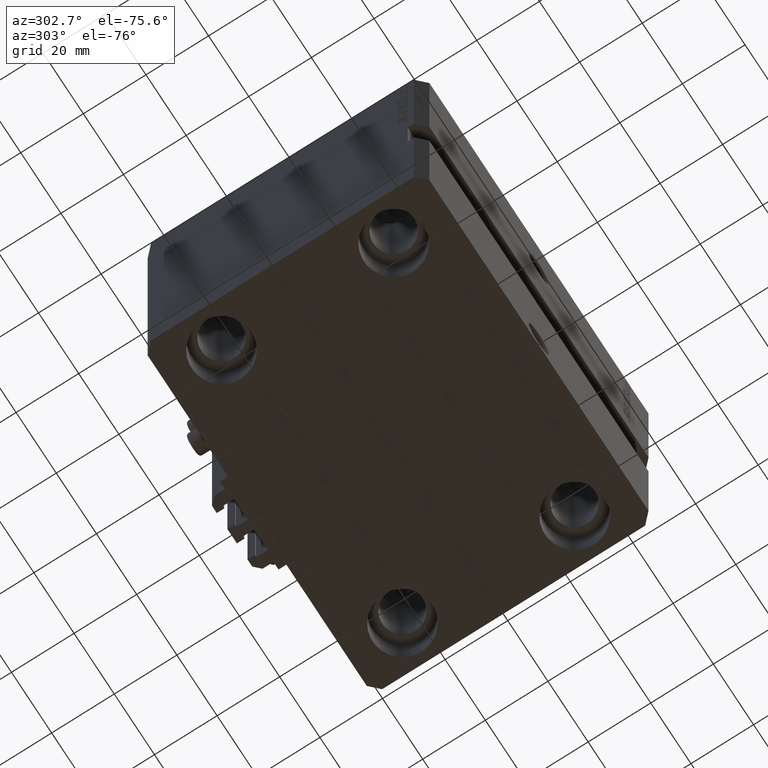
[diagram: clean part render]
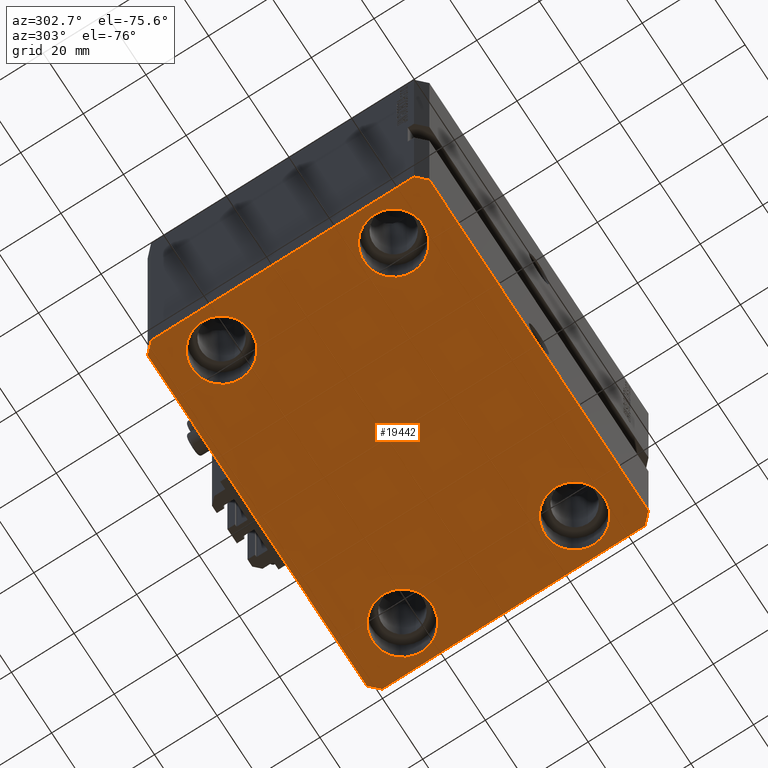
[diagram: same view with one face highlighted and labeled with its STEP entity id]
A machine part, auxiliary view. The second image highlights one B-rep face of the part: STEP entity #19442.
In plain terms, the highlighted planar face has unit normal (0, 0, 1).
Its self-contained STEP definition (entity closure, byte-faithful):
#517 = CARTESIAN_POINT ( 'NONE',  ( 35.50000000000000000, 27.50000000000001776, -105.0000000000000000 ) ) ;
#682 = DIRECTION ( 'NONE',  ( 1.000000000000000000, 0.000000000000000000, 0.000000000000000000 ) ) ;
#736 = EDGE_CURVE ( 'NONE', #4259, #29460, #34049, .T. ) ;
#876 = CARTESIAN_POINT ( 'NONE',  ( -45.00000000000000000, 27.50000000000000355, -105.0000000000000000 ) ) ;
#1397 = DIRECTION ( 'NONE',  ( 1.000000000000000000, 1.273191542001326317E-16, 0.000000000000000000 ) ) ;
#1616 = DIRECTION ( 'NONE',  ( -0.7071067811865483499, -0.7071067811865466846, 0.000000000000000000 ) ) ;
#2354 = AXIS2_PLACEMENT_3D ( 'NONE', #46437, #12701, #42723 ) ;
#2897 = VERTEX_POINT ( 'NONE', #41243 ) ;
#3004 = CARTESIAN_POINT ( 'NONE',  ( -45.00000000000000000, 27.50000000000000355, -105.0000000000000000 ) ) ;
#3171 = CARTESIAN_POINT ( 'NONE',  ( 54.50000000000058975, 45.00000000000002842, -105.0000000000000000 ) ) ;
#3797 = CARTESIAN_POINT ( 'NONE',  ( -54.49999999999999289, 45.00000000000000000, -105.0000000000000000 ) ) ;
#4195 = AXIS2_PLACEMENT_3D ( 'NONE', #25758, #17901, #37062 ) ;
#4215 = CARTESIAN_POINT ( 'NONE',  ( -54.50000000000000000, -27.49999999999999645, -105.0000000000000000 ) ) ;
#4259 = VERTEX_POINT ( 'NONE', #4215 ) ;
#4645 = CIRCLE ( 'NONE', #24326, 9.500000000000001776 ) ;
#4854 = EDGE_CURVE ( 'NONE', #8123, #25210, #18353, .T. ) ;
#4953 = VERTEX_POINT ( 'NONE', #26864 ) ;
#4956 = DIRECTION ( 'NONE',  ( -0.000000000000000000, -0.000000000000000000, 1.000000000000000000 ) ) ;
#5159 = CARTESIAN_POINT ( 'NONE',  ( -57.49999999999998579, 42.00000000000000711, -105.0000000000000000 ) ) ;
#5642 = CARTESIAN_POINT ( 'NONE',  ( -35.50000000000000000, -27.49999999999999645, -105.0000000000000000 ) ) ;
#5680 = ORIENTED_EDGE ( 'NONE', *, *, #25234, .F. ) ;
#5802 = LINE ( 'NONE', #28184, #21617 ) ;
#6116 = LINE ( 'NONE', #32438, #35342 ) ;
#6173 = VERTEX_POINT ( 'NONE', #40319 ) ;
#6326 = VECTOR ( 'NONE', #32227, 1000.000000000000000 ) ;
#7705 = CARTESIAN_POINT ( 'NONE',  ( 54.50000000000058975, 45.00000000000002842, -105.0000000000000000 ) ) ;
#8123 = VERTEX_POINT ( 'NONE', #43364 ) ;
#9108 = CARTESIAN_POINT ( 'NONE',  ( 54.50000000000000000, -27.49999999999999645, -105.0000000000000000 ) ) ;
#9145 = DIRECTION ( 'NONE',  ( 1.000000000000000000, 0.000000000000000000, 0.000000000000000000 ) ) ;
#9161 = ORIENTED_EDGE ( 'NONE', *, *, #736, .T. ) ;
#9305 = VERTEX_POINT ( 'NONE', #3797 ) ;
#9674 = CIRCLE ( 'NONE', #15150, 9.500000000000001776 ) ;
#10159 = CARTESIAN_POINT ( 'NONE',  ( 45.00000000000000000, -27.49999999999999645, -105.0000000000000000 ) ) ;
#10780 = DIRECTION ( 'NONE',  ( 6.443258625056715108E-15, 1.000000000000000000, 0.000000000000000000 ) ) ;
#11062 = ORIENTED_EDGE ( 'NONE', *, *, #30154, .T. ) ;
#11364 = FACE_BOUND ( 'NONE', #37778, .T. ) ;
#11383 = EDGE_LOOP ( 'NONE', ( #45293, #40790 ) ) ;
#12701 = DIRECTION ( 'NONE',  ( -0.000000000000000000, -0.000000000000000000, 1.000000000000000000 ) ) ;
#13614 = VERTEX_POINT ( 'NONE', #7705 ) ;
#13885 = DIRECTION ( 'NONE',  ( 1.000000000000000000, 0.000000000000000000, 0.000000000000000000 ) ) ;
#14718 = CARTESIAN_POINT ( 'NONE',  ( 57.50000000000000711, -41.99999999999998579, -105.0000000000000000 ) ) ;
#14774 = VERTEX_POINT ( 'NONE', #5159 ) ;
#15051 = DIRECTION ( 'NONE',  ( 1.000000000000000000, 0.000000000000000000, -0.000000000000000000 ) ) ;
#15150 = AXIS2_PLACEMENT_3D ( 'NONE', #3004, #48538, #17532 ) ;
#15206 = LINE ( 'NONE', #14718, #41894 ) ;
#15300 = CARTESIAN_POINT ( 'NONE',  ( 0.000000000000000000, 0.000000000000000000, -105.0000000000000000 ) ) ;
#15704 = DIRECTION ( 'NONE',  ( -2.478176394252581141E-16, -1.000000000000000000, 0.000000000000000000 ) ) ;
#15942 = CARTESIAN_POINT ( 'NONE',  ( -57.49999999999998579, 42.00000000000000711, -105.0000000000000000 ) ) ;
#16219 = ORIENTED_EDGE ( 'NONE', *, *, #42744, .T. ) ;
#16627 = VECTOR ( 'NONE', #15704, 1000.000000000000000 ) ;
#17245 = VERTEX_POINT ( 'NONE', #22202 ) ;
#17532 = DIRECTION ( 'NONE',  ( 1.000000000000000000, 0.000000000000000000, 0.000000000000000000 ) ) ;
#17590 = CARTESIAN_POINT ( 'NONE',  ( -45.00000000000000000, -27.49999999999999645, -105.0000000000000000 ) ) ;
#17901 = DIRECTION ( 'NONE',  ( -0.000000000000000000, -0.000000000000000000, 1.000000000000000000 ) ) ;
#17926 = AXIS2_PLACEMENT_3D ( 'NONE', #15300, #41867, #15051 ) ;
#18051 = EDGE_LOOP ( 'NONE', ( #9161, #11062 ) ) ;
#18317 = AXIS2_PLACEMENT_3D ( 'NONE', #876, #42949, #31633 ) ;
#18353 = CIRCLE ( 'NONE', #30917, 9.500000000000001776 ) ;
#18992 = FACE_BOUND ( 'NONE', #11383, .T. ) ;
#19051 = EDGE_CURVE ( 'NONE', #4953, #27713, #22632, .T. ) ;
#19322 = EDGE_CURVE ( 'NONE', #46037, #23864, #21960, .T. ) ;
#19442 = ADVANCED_FACE ( 'NONE', ( #26623, #45578, #18992, #11364, #41625 ), #22200, .F. ) ;
#20465 = LINE ( 'NONE', #48630, #46348 ) ;
#21617 = VECTOR ( 'NONE', #1616, 1000.000000000000000 ) ;
#21960 = LINE ( 'NONE', #40175, #23412 ) ;
#22200 = PLANE ( 'NONE',  #17926 ) ;
#22202 = CARTESIAN_POINT ( 'NONE',  ( 57.50000000000055422, 41.99999999999997868, -105.0000000000000000 ) ) ;
#22632 = CIRCLE ( 'NONE', #24989, 9.500000000000001776 ) ;
#23412 = VECTOR ( 'NONE', #47821, 1000.000000000000000 ) ;
#23512 = EDGE_CURVE ( 'NONE', #25210, #8123, #35324, .T. ) ;
#23722 = EDGE_CURVE ( 'NONE', #29703, #2897, #20465, .T. ) ;
#23864 = VERTEX_POINT ( 'NONE', #37774 ) ;
#24326 = AXIS2_PLACEMENT_3D ( 'NONE', #17590, #39243, #13885 ) ;
#24491 = EDGE_CURVE ( 'NONE', #2897, #46037, #42983, .T. ) ;
#24989 = AXIS2_PLACEMENT_3D ( 'NONE', #28919, #4956, #9145 ) ;
#25210 = VERTEX_POINT ( 'NONE', #9108 ) ;
#25234 = EDGE_CURVE ( 'NONE', #13614, #9305, #32465, .T. ) ;
#25654 = DIRECTION ( 'NONE',  ( 1.000000000000000000, 0.000000000000000000, 0.000000000000000000 ) ) ;
#25758 = CARTESIAN_POINT ( 'NONE',  ( -45.00000000000000000, -27.49999999999999645, -105.0000000000000000 ) ) ;
#26623 = FACE_BOUND ( 'NONE', #18051, .T. ) ;
#26864 = CARTESIAN_POINT ( 'NONE',  ( 54.50000000000000000, 27.50000000000001776, -105.0000000000000000 ) ) ;
#27713 = VERTEX_POINT ( 'NONE', #517 ) ;
#27760 = ORIENTED_EDGE ( 'NONE', *, *, #23722, .F. ) ;
#28184 = CARTESIAN_POINT ( 'NONE',  ( -54.49999999999999289, 45.00000000000000000, -105.0000000000000000 ) ) ;
#28546 = EDGE_CURVE ( 'NONE', #23864, #17245, #15206, .T. ) ;
#28919 = CARTESIAN_POINT ( 'NONE',  ( 45.00000000000000000, 27.50000000000001776, -105.0000000000000000 ) ) ;
#29158 = CIRCLE ( 'NONE', #36231, 9.500000000000001776 ) ;
#29460 = VERTEX_POINT ( 'NONE', #5642 ) ;
#29703 = VERTEX_POINT ( 'NONE', #35351 ) ;
#30154 = EDGE_CURVE ( 'NONE', #29460, #4259, #4645, .T. ) ;
#30917 = AXIS2_PLACEMENT_3D ( 'NONE', #10159, #40893, #25654 ) ;
#31633 = DIRECTION ( 'NONE',  ( 1.000000000000000000, 0.000000000000000000, 0.000000000000000000 ) ) ;
#31725 = CARTESIAN_POINT ( 'NONE',  ( -54.50000000000000000, 27.50000000000000355, -105.0000000000000000 ) ) ;
#31734 = ORIENTED_EDGE ( 'NONE', *, *, #19322, .F. ) ;
#31761 = EDGE_CURVE ( 'NONE', #17245, #13614, #6116, .T. ) ;
#32227 = DIRECTION ( 'NONE',  ( -1.000000000000000000, -2.546383084002639322E-16, 0.000000000000000000 ) ) ;
#32392 = VERTEX_POINT ( 'NONE', #31725 ) ;
#32438 = CARTESIAN_POINT ( 'NONE',  ( 57.50000000000055422, 41.99999999999997868, -105.0000000000000000 ) ) ;
#32465 = LINE ( 'NONE', #3171, #6326 ) ;
#33234 = CIRCLE ( 'NONE', #18317, 9.500000000000001776 ) ;
#33237 = EDGE_LOOP ( 'NONE', ( #5680, #38677, #37644, #31734, #42279, #27760, #34787, #38001 ) ) ;
#34049 = CIRCLE ( 'NONE', #4195, 9.500000000000001776 ) ;
#34475 = EDGE_CURVE ( 'NONE', #27713, #4953, #29158, .T. ) ;
#34787 = ORIENTED_EDGE ( 'NONE', *, *, #35337, .F. ) ;
#35324 = CIRCLE ( 'NONE', #2354, 9.500000000000001776 ) ;
#35337 = EDGE_CURVE ( 'NONE', #14774, #29703, #42267, .T. ) ;
#35342 = VECTOR ( 'NONE', #48198, 999.9999999999998863 ) ;
#35351 = CARTESIAN_POINT ( 'NONE',  ( -57.50000000000000711, -42.00000000000000711, -105.0000000000000000 ) ) ;
#36231 = AXIS2_PLACEMENT_3D ( 'NONE', #42498, #42262, #682 ) ;
#37062 = DIRECTION ( 'NONE',  ( 1.000000000000000000, 0.000000000000000000, 0.000000000000000000 ) ) ;
#37644 = ORIENTED_EDGE ( 'NONE', *, *, #28546, .F. ) ;
#37774 = CARTESIAN_POINT ( 'NONE',  ( 57.50000000000000711, -41.99999999999998579, -105.0000000000000000 ) ) ;
#37778 = EDGE_LOOP ( 'NONE', ( #16219, #45665 ) ) ;
#38001 = ORIENTED_EDGE ( 'NONE', *, *, #47808, .F. ) ;
#38677 = ORIENTED_EDGE ( 'NONE', *, *, #31761, .F. ) ;
#39147 = ORIENTED_EDGE ( 'NONE', *, *, #4854, .T. ) ;
#39243 = DIRECTION ( 'NONE',  ( -0.000000000000000000, -0.000000000000000000, 1.000000000000000000 ) ) ;
#40025 = CARTESIAN_POINT ( 'NONE',  ( -54.50000000000000711, -45.00000000000000000, -105.0000000000000000 ) ) ;
#40175 = CARTESIAN_POINT ( 'NONE',  ( 54.50000000000000711, -44.99999999999998579, -105.0000000000000000 ) ) ;
#40319 = CARTESIAN_POINT ( 'NONE',  ( -35.50000000000000000, 27.50000000000000355, -105.0000000000000000 ) ) ;
#40790 = ORIENTED_EDGE ( 'NONE', *, *, #19051, .T. ) ;
#40848 = ORIENTED_EDGE ( 'NONE', *, *, #23512, .T. ) ;
#40893 = DIRECTION ( 'NONE',  ( -0.000000000000000000, -0.000000000000000000, 1.000000000000000000 ) ) ;
#41243 = CARTESIAN_POINT ( 'NONE',  ( -54.50000000000000711, -45.00000000000000000, -105.0000000000000000 ) ) ;
#41625 = FACE_OUTER_BOUND ( 'NONE', #33237, .T. ) ;
#41867 = DIRECTION ( 'NONE',  ( 0.000000000000000000, 0.000000000000000000, 1.000000000000000000 ) ) ;
#41894 = VECTOR ( 'NONE', #10780, 1000.000000000000000 ) ;
#41981 = EDGE_CURVE ( 'NONE', #6173, #32392, #9674, .T. ) ;
#42262 = DIRECTION ( 'NONE',  ( -0.000000000000000000, -0.000000000000000000, 1.000000000000000000 ) ) ;
#42267 = LINE ( 'NONE', #15942, #16627 ) ;
#42279 = ORIENTED_EDGE ( 'NONE', *, *, #24491, .F. ) ;
#42498 = CARTESIAN_POINT ( 'NONE',  ( 45.00000000000000000, 27.50000000000001776, -105.0000000000000000 ) ) ;
#42723 = DIRECTION ( 'NONE',  ( 1.000000000000000000, 0.000000000000000000, 0.000000000000000000 ) ) ;
#42744 = EDGE_CURVE ( 'NONE', #32392, #6173, #33234, .T. ) ;
#42949 = DIRECTION ( 'NONE',  ( -0.000000000000000000, -0.000000000000000000, 1.000000000000000000 ) ) ;
#42983 = LINE ( 'NONE', #40025, #44032 ) ;
#43364 = CARTESIAN_POINT ( 'NONE',  ( 35.50000000000000000, -27.49999999999999645, -105.0000000000000000 ) ) ;
#44032 = VECTOR ( 'NONE', #1397, 1000.000000000000000 ) ;
#44079 = EDGE_LOOP ( 'NONE', ( #39147, #40848 ) ) ;
#45182 = DIRECTION ( 'NONE',  ( 0.7071067811865491270, -0.7071067811865459074, 0.000000000000000000 ) ) ;
#45293 = ORIENTED_EDGE ( 'NONE', *, *, #34475, .T. ) ;
#45578 = FACE_BOUND ( 'NONE', #44079, .T. ) ;
#45665 = ORIENTED_EDGE ( 'NONE', *, *, #41981, .T. ) ;
#46037 = VERTEX_POINT ( 'NONE', #46755 ) ;
#46348 = VECTOR ( 'NONE', #45182, 1000.000000000000114 ) ;
#46437 = CARTESIAN_POINT ( 'NONE',  ( 45.00000000000000000, -27.49999999999999645, -105.0000000000000000 ) ) ;
#46755 = CARTESIAN_POINT ( 'NONE',  ( 54.50000000000000711, -44.99999999999998579, -105.0000000000000000 ) ) ;
#47808 = EDGE_CURVE ( 'NONE', #9305, #14774, #5802, .T. ) ;
#47821 = DIRECTION ( 'NONE',  ( 0.7071067811865483499, 0.7071067811865466846, 0.000000000000000000 ) ) ;
#48198 = DIRECTION ( 'NONE',  ( -0.7071067811865376918, 0.7071067811865574537, 0.000000000000000000 ) ) ;
#48538 = DIRECTION ( 'NONE',  ( -0.000000000000000000, -0.000000000000000000, 1.000000000000000000 ) ) ;
#48630 = CARTESIAN_POINT ( 'NONE',  ( -57.50000000000000711, -42.00000000000000711, -105.0000000000000000 ) ) ;